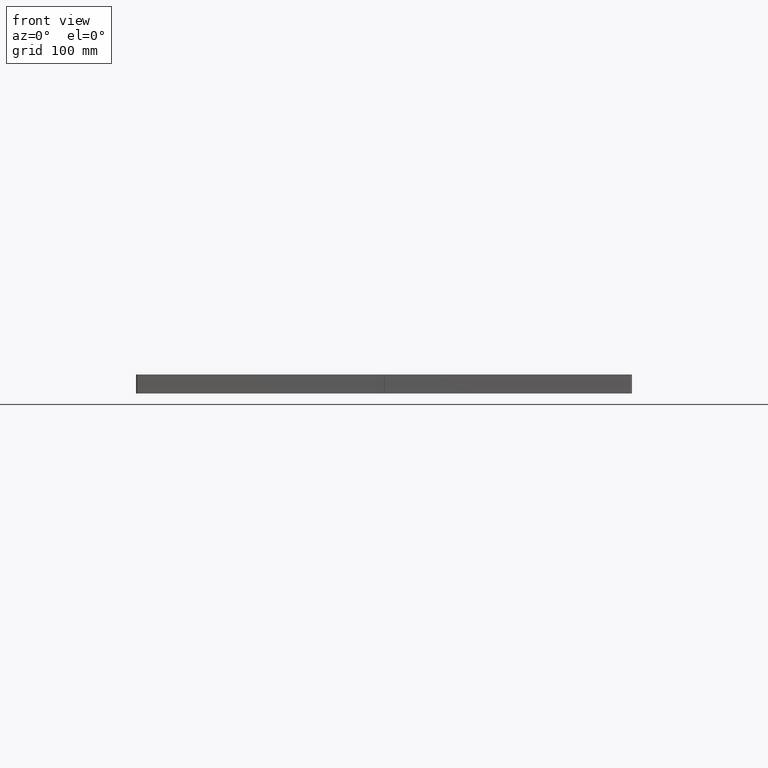
[diagram: clean part render]
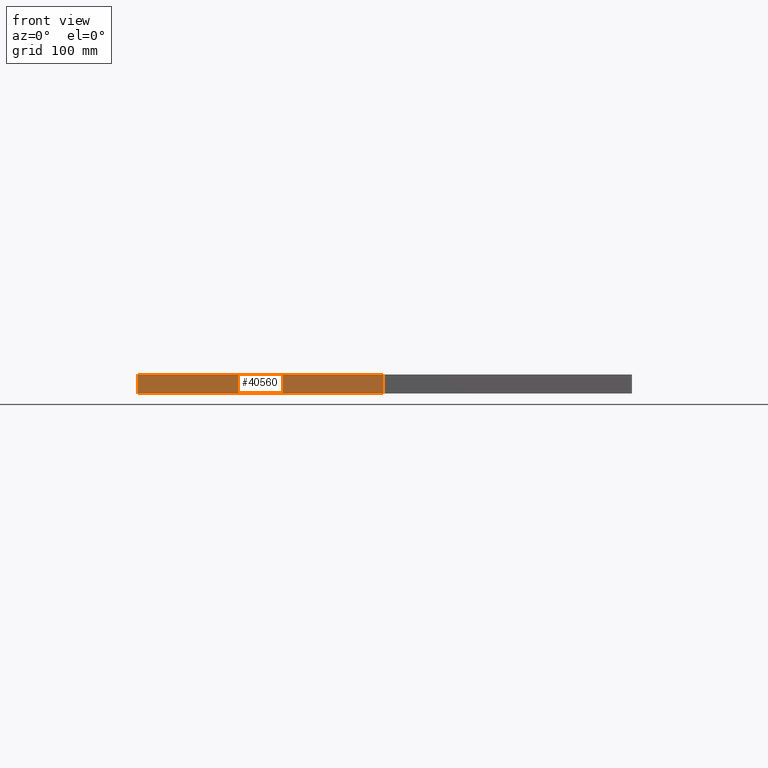
[diagram: same view with one face highlighted and labeled with its STEP entity id]
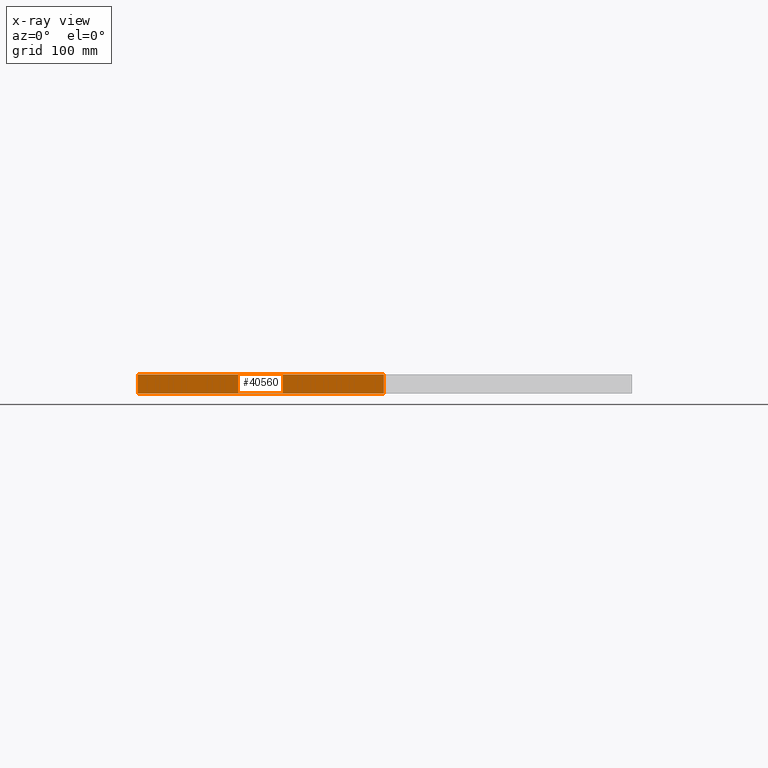
[diagram: x-ray of the same camera — body ghosted, the highlighted face saturated]
A machine part, front view. The second image highlights one B-rep face of the part: STEP entity #40560.
The next image is the same camera in x-ray: the body ghosted, the highlighted face saturated — about 0% of this face is hidden behind the body in this view.
In plain terms, the highlighted planar face has unit normal (0, -1, 0).
Its self-contained STEP definition (entity closure, byte-faithful):
#1046=LINE('',#64759,#2771);
#1111=LINE('',#65744,#2836);
#1118=LINE('',#66473,#2843);
#1128=LINE('',#66491,#2853);
#2771=VECTOR('',#48980,0.393700787401575);
#2836=VECTOR('',#50039,0.393700787401575);
#2843=VECTOR('',#50766,0.393700787401575);
#2853=VECTOR('',#50792,0.393700787401575);
#8458=FACE_OUTER_BOUND('',#11826,.T.);
#11826=EDGE_LOOP('',(#30158,#30159,#30160,#30161));
#19224=VERTEX_POINT('',#64756);
#19225=VERTEX_POINT('',#64758);
#19647=VERTEX_POINT('',#65741);
#19648=VERTEX_POINT('',#65743);
#23093=EDGE_CURVE('',#19224,#19225,#1046,.T.);
#23584=EDGE_CURVE('',#19648,#19647,#1111,.T.);
#23949=EDGE_CURVE('',#19225,#19647,#1118,.T.);
#23959=EDGE_CURVE('',#19648,#19224,#1128,.T.);
#30158=ORIENTED_EDGE('',*,*,#23949,.F.);
#30159=ORIENTED_EDGE('',*,*,#23093,.F.);
#30160=ORIENTED_EDGE('',*,*,#23959,.F.);
#30161=ORIENTED_EDGE('',*,*,#23584,.T.);
#39614=PLANE('',#44009);
#40560=ADVANCED_FACE('',(#8458),#39614,.T.);
#44009=AXIS2_PLACEMENT_3D('',#66492,#50793,#50794);
#48980=DIRECTION('',(1.,0.,0.));
#50039=DIRECTION('',(1.,0.,0.));
#50766=DIRECTION('',(0.,0.,-1.));
#50792=DIRECTION('',(0.,0.,1.));
#50793=DIRECTION('center_axis',(0.,-1.,0.));
#50794=DIRECTION('ref_axis',(1.,0.,0.));
#64756=CARTESIAN_POINT('',(-11.9167157287525,-13.,0.92));
#64758=CARTESIAN_POINT('',(-0.0240710678118676,-13.,0.92));
#64759=CARTESIAN_POINT('',(-12.,-13.,0.92));
#65741=CARTESIAN_POINT('',(-0.0240710678118676,-13.,0.));
#65743=CARTESIAN_POINT('',(-11.9167157287525,-13.,0.));
#65744=CARTESIAN_POINT('',(-12.,-13.,0.));
#66473=CARTESIAN_POINT('',(-0.024071067811868,-13.,0.));
#66491=CARTESIAN_POINT('',(-11.9167157287525,-13.,0.));
#66492=CARTESIAN_POINT('Origin',(-12.,-13.,0.));